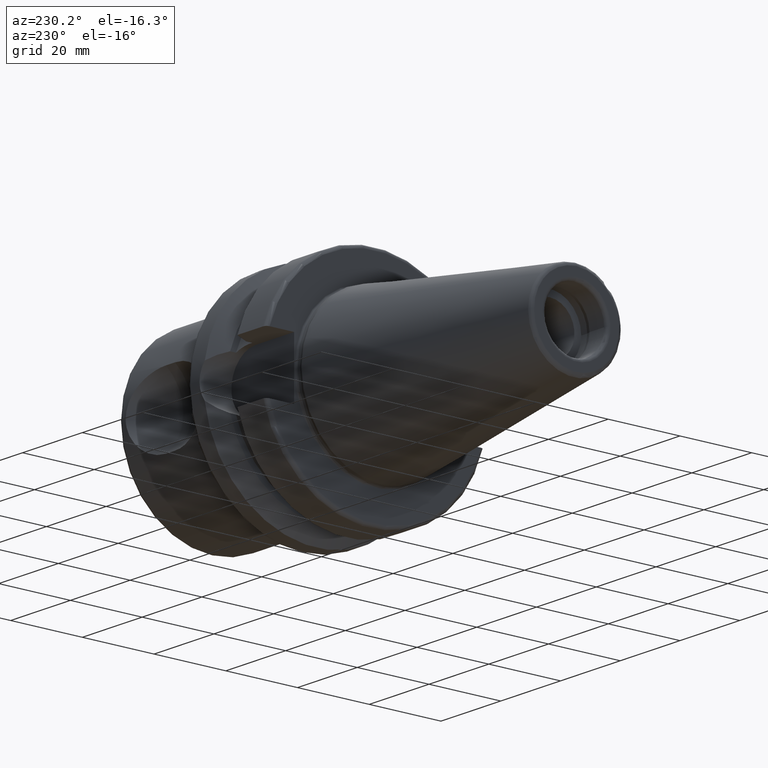
[diagram: clean part render]
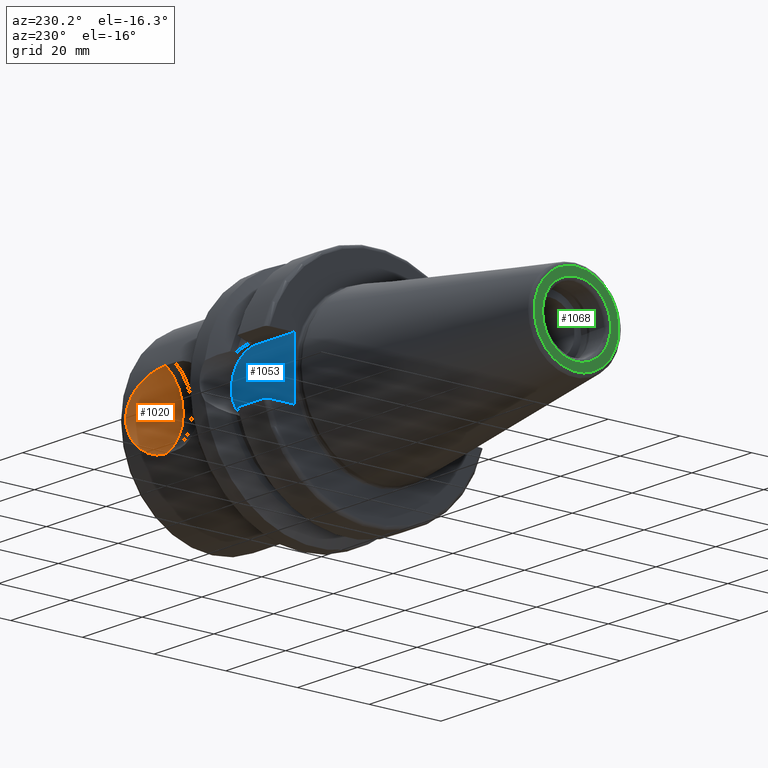
[diagram: same view with three faces highlighted in distinct colors, each labeled with its STEP entity id]
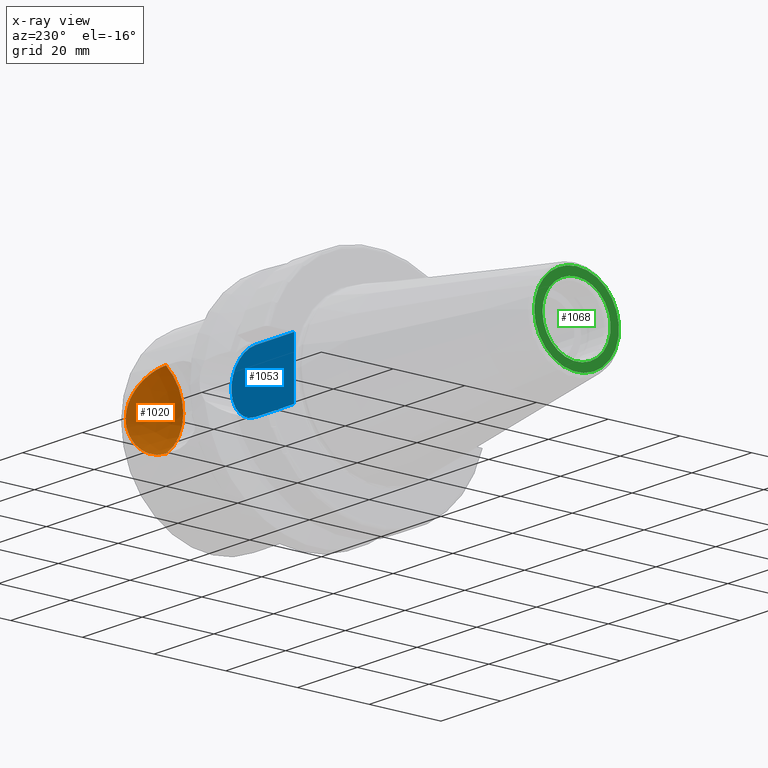
[diagram: x-ray of the same camera — body ghosted, the three highlighted faces saturated]
A machine part, auxiliary view with three faces highlighted in distinct colors.
The next image is the same camera in x-ray (body ghosted, the three faces saturated) — at least one of them is partly hidden behind the body in this view.
Their STEP definitions:

[orange] entity #1020 — the highlighted spherical surface has radius 12.5 mm.
#175=FACE_OUTER_BOUND('',#230,.T.);
#230=EDGE_LOOP('',(#693,#694,#695));
#295=CIRCLE('',#1097,12.5);
#387=B_SPLINE_CURVE_WITH_KNOTS('',3,(#1614,#1615,#1616,#1617,#1618,#1619,
#1620,#1621,#1622,#1623,#1624,#1625,#1626,#1627),.UNSPECIFIED.,.F.,.F.,
(4,2,2,2,2,2,4),(1.17832725890177,1.45944341152974,1.74055956415772,2.02167571678569,
2.30279186941367,2.54829350110822,2.79379513280278),.UNSPECIFIED.);
#388=B_SPLINE_CURVE_WITH_KNOTS('',3,(#1630,#1631,#1632,#1633,#1634,#1635,
#1636,#1637,#1638,#1639,#1640,#1641,#1642,#1643),.UNSPECIFIED.,.F.,.F.,
(4,2,2,2,2,2,4),(2.79379513280278,3.03929676449733,3.28479839619188,3.56591454881986,
3.84703070144784,4.12814685407581,4.40926300670379),.UNSPECIFIED.);
#412=VERTEX_POINT('',#1612);
#413=VERTEX_POINT('',#1613);
#414=VERTEX_POINT('',#1628);
#529=EDGE_CURVE('',#412,#413,#387,.T.);
#530=EDGE_CURVE('',#412,#414,#295,.T.);
#531=EDGE_CURVE('',#413,#414,#388,.T.);
#693=ORIENTED_EDGE('',*,*,#529,.F.);
#694=ORIENTED_EDGE('',*,*,#530,.T.);
#695=ORIENTED_EDGE('',*,*,#531,.F.);
#1018=SPHERICAL_SURFACE('',#1096,12.5);
#1020=ADVANCED_FACE('',(#175),#1018,.F.);
#1096=AXIS2_PLACEMENT_3D('',#1611,#1245,#1246);
#1097=AXIS2_PLACEMENT_3D('',#1629,#1247,#1248);
#1245=DIRECTION('center_axis',(1.,0.,0.));
#1246=DIRECTION('ref_axis',(0.,-1.,0.));
#1247=DIRECTION('center_axis',(-1.,0.,0.));
#1248=DIRECTION('ref_axis',(0.,0.,1.));
#1611=CARTESIAN_POINT('Origin',(43.9,31.1,0.));
#1612=CARTESIAN_POINT('',(43.9,23.4102893890675,-9.85486431769167));
#1613=CARTESIAN_POINT('',(55.0247471881387,25.4,-3.35941384993302E-15));
#1614=CARTESIAN_POINT('Ctrl Pts',(43.9,23.4102893890675,-9.85486431769167));
#1615=CARTESIAN_POINT('Ctrl Pts',(44.8370538420933,23.4102893890675,-9.85486431769167));
#1616=CARTESIAN_POINT('Ctrl Pts',(45.7977423518484,23.4539959498598,-9.75305848004407));
#1617=CARTESIAN_POINT('Ctrl Pts',(47.6769739944852,23.625444609717,-9.33008268165364));
#1618=CARTESIAN_POINT('Ctrl Pts',(48.5955579425953,23.7529559221369,-9.00900054831946));
#1619=CARTESIAN_POINT('Ctrl Pts',(50.3094927429142,24.0589584727008,-8.15668737560362));
#1620=CARTESIAN_POINT('Ctrl Pts',(51.1065653637113,24.2372990048406,-7.62459709597406));
#1621=CARTESIAN_POINT('Ctrl Pts',(52.5131016610926,24.5950310978576,-6.37695770130135));
#1622=CARTESIAN_POINT('Ctrl Pts',(53.1226602870351,24.7738996893597,-5.66136573563702));
#1623=CARTESIAN_POINT('Ctrl Pts',(54.0421142874685,25.0610732027248,-4.19387163172099));
#1624=CARTESIAN_POINT('Ctrl Pts',(54.4153385046958,25.1870089336745,-3.39025944228934));
#1625=CARTESIAN_POINT('Ctrl Pts',(54.9067925280826,25.3570595887689,-1.70259213601163));
#1626=CARTESIAN_POINT('Ctrl Pts',(55.0247471881387,25.4,-0.818338772315187));
#1627=CARTESIAN_POINT('Ctrl Pts',(55.0247471881387,25.4,-3.60822483003176E-15));
#1628=CARTESIAN_POINT('',(43.9,23.4102893890675,9.85486431769167));
#1629=CARTESIAN_POINT('Origin',(43.9,31.1,0.));
#1630=CARTESIAN_POINT('Ctrl Pts',(55.0247471881387,25.4,-3.33066907387547E-15));
#1631=CARTESIAN_POINT('Ctrl Pts',(55.0247471881387,25.4,0.81833877231518));
#1632=CARTESIAN_POINT('Ctrl Pts',(54.9067925280826,25.3570595887689,1.70259213601162));
#1633=CARTESIAN_POINT('Ctrl Pts',(54.4153385046958,25.1870089336745,3.39025944228934));
#1634=CARTESIAN_POINT('Ctrl Pts',(54.0421142874685,25.0610732027248,4.19387163172098));
#1635=CARTESIAN_POINT('Ctrl Pts',(53.1226602870351,24.7738996893597,5.66136573563701));
#1636=CARTESIAN_POINT('Ctrl Pts',(52.5131016610926,24.5950310978577,6.37695770130135));
#1637=CARTESIAN_POINT('Ctrl Pts',(51.1065653637113,24.2372990048406,7.62459709597406));
#1638=CARTESIAN_POINT('Ctrl Pts',(50.3094927429142,24.0589584727008,8.15668737560362));
#1639=CARTESIAN_POINT('Ctrl Pts',(48.5955579425953,23.7529559221369,9.00900054831946));
#1640=CARTESIAN_POINT('Ctrl Pts',(47.6769739944852,23.625444609717,9.33008268165364));
#1641=CARTESIAN_POINT('Ctrl Pts',(45.7977423518484,23.4539959498598,9.75305848004407));
#1642=CARTESIAN_POINT('Ctrl Pts',(44.8370538420932,23.4102893890675,9.85486431769167));
#1643=CARTESIAN_POINT('Ctrl Pts',(43.9,23.4102893890675,9.85486431769167));

[blue] entity #1053 — the highlighted planar face has unit normal (0, 1, 0).
#50=PLANE('',#1182);
#97=LINE('',#2002,#143);
#104=LINE('',#2045,#150);
#105=LINE('',#2047,#151);
#143=VECTOR('',#1442,10.);
#150=VECTOR('',#1455,10.);
#151=VECTOR('',#1458,10.);
#208=FACE_OUTER_BOUND('',#270,.T.);
#270=EDGE_LOOP('',(#899,#900,#901,#902));
#347=CIRCLE('',#1180,8.05);
#490=VERTEX_POINT('',#1999);
#491=VERTEX_POINT('',#2001);
#498=VERTEX_POINT('',#2039);
#499=VERTEX_POINT('',#2043);
#633=EDGE_CURVE('',#491,#490,#97,.T.);
#643=EDGE_CURVE('',#490,#498,#347,.T.);
#645=EDGE_CURVE('',#498,#499,#104,.T.);
#646=EDGE_CURVE('',#491,#499,#105,.T.);
#899=ORIENTED_EDGE('',*,*,#645,.T.);
#900=ORIENTED_EDGE('',*,*,#646,.F.);
#901=ORIENTED_EDGE('',*,*,#633,.T.);
#902=ORIENTED_EDGE('',*,*,#643,.T.);
#1053=ADVANCED_FACE('',(#208),#50,.T.);
#1180=AXIS2_PLACEMENT_3D('',#2041,#1450,#1451);
#1182=AXIS2_PLACEMENT_3D('',#2046,#1456,#1457);
#1442=DIRECTION('',(1.,0.,8.57315076930623E-17));
#1450=DIRECTION('center_axis',(0.,1.,0.));
#1451=DIRECTION('ref_axis',(0.,0.,1.));
#1455=DIRECTION('',(-1.,0.,-8.57315076930623E-17));
#1456=DIRECTION('center_axis',(0.,1.,0.));
#1457=DIRECTION('ref_axis',(0.,0.,1.));
#1458=DIRECTION('',(0.,0.,-1.));
#1999=CARTESIAN_POINT('',(14.95,22.6,8.05));
#2001=CARTESIAN_POINT('',(1.99999999999999,22.6,8.05));
#2002=CARTESIAN_POINT('',(1.99999999999999,22.6,8.05));
#2039=CARTESIAN_POINT('',(14.95,22.6,-8.05));
#2041=CARTESIAN_POINT('Origin',(14.95,22.6,0.));
#2043=CARTESIAN_POINT('',(1.99999999999999,22.6,-8.05));
#2045=CARTESIAN_POINT('',(14.95,22.6,-8.05));
#2046=CARTESIAN_POINT('Origin',(12.5,22.6,0.));
#2047=CARTESIAN_POINT('',(1.99999999999999,22.6,0.));

[green] entity #1068 — the highlighted planar face has unit normal (-1, 0, 0).
#37=FACE_BOUND('',#288,.T.);
#55=PLANE('',#1219);
#223=FACE_OUTER_BOUND('',#287,.T.);
#287=EDGE_LOOP('',(#979,#980));
#288=EDGE_LOOP('',(#981,#982));
#367=CIRCLE('',#1216,9.5);
#368=CIRCLE('',#1217,9.5);
#370=CIRCLE('',#1220,11.8227555970304);
#371=CIRCLE('',#1221,11.8227555970304);
#511=VERTEX_POINT('',#2095);
#512=VERTEX_POINT('',#2096);
#513=VERTEX_POINT('',#2101);
#514=VERTEX_POINT('',#2102);
#669=EDGE_CURVE('',#511,#512,#367,.T.);
#670=EDGE_CURVE('',#512,#511,#368,.T.);
#672=EDGE_CURVE('',#513,#514,#370,.T.);
#673=EDGE_CURVE('',#514,#513,#371,.T.);
#979=ORIENTED_EDGE('',*,*,#672,.F.);
#980=ORIENTED_EDGE('',*,*,#673,.F.);
#981=ORIENTED_EDGE('',*,*,#669,.T.);
#982=ORIENTED_EDGE('',*,*,#670,.T.);
#1068=ADVANCED_FACE('',(#223,#37),#55,.T.);
#1216=AXIS2_PLACEMENT_3D('',#2097,#1528,#1529);
#1217=AXIS2_PLACEMENT_3D('',#2098,#1530,#1531);
#1219=AXIS2_PLACEMENT_3D('',#2100,#1534,#1535);
#1220=AXIS2_PLACEMENT_3D('',#2103,#1536,#1537);
#1221=AXIS2_PLACEMENT_3D('',#2104,#1538,#1539);
#1528=DIRECTION('center_axis',(1.,0.,0.));
#1529=DIRECTION('ref_axis',(0.,0.,-1.));
#1530=DIRECTION('center_axis',(1.,0.,0.));
#1531=DIRECTION('ref_axis',(0.,0.,-1.));
#1534=DIRECTION('center_axis',(-1.,0.,0.));
#1535=DIRECTION('ref_axis',(0.,0.,1.));
#1536=DIRECTION('center_axis',(1.,0.,0.));
#1537=DIRECTION('ref_axis',(0.,0.,-1.));
#1538=DIRECTION('center_axis',(1.,0.,0.));
#1539=DIRECTION('ref_axis',(0.,0.,-1.));
#2095=CARTESIAN_POINT('',(-65.4,9.5,0.));
#2096=CARTESIAN_POINT('',(-65.4,-1.16341445918999E-15,9.5));
#2097=CARTESIAN_POINT('Origin',(-65.4,0.,0.));
#2098=CARTESIAN_POINT('Origin',(-65.4,0.,0.));
#2100=CARTESIAN_POINT('Origin',(-65.4,11.8227555970304,0.));
#2101=CARTESIAN_POINT('',(-65.4,11.8227555970304,0.));
#2102=CARTESIAN_POINT('',(-65.4,-1.44786997990048E-15,11.8227555970304));
#2103=CARTESIAN_POINT('Origin',(-65.4,0.,0.));
#2104=CARTESIAN_POINT('Origin',(-65.4,0.,0.));